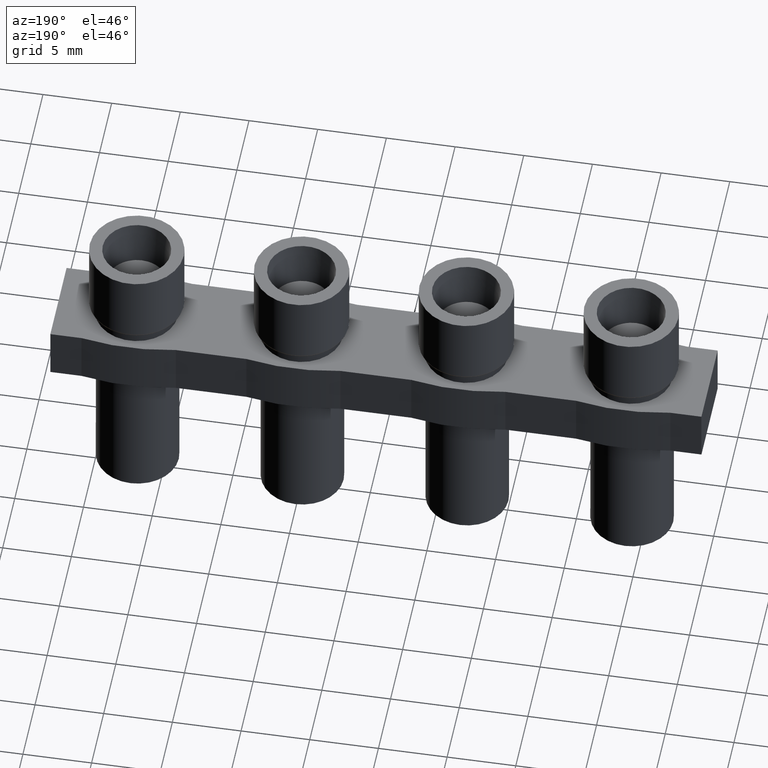
[diagram: clean part render]
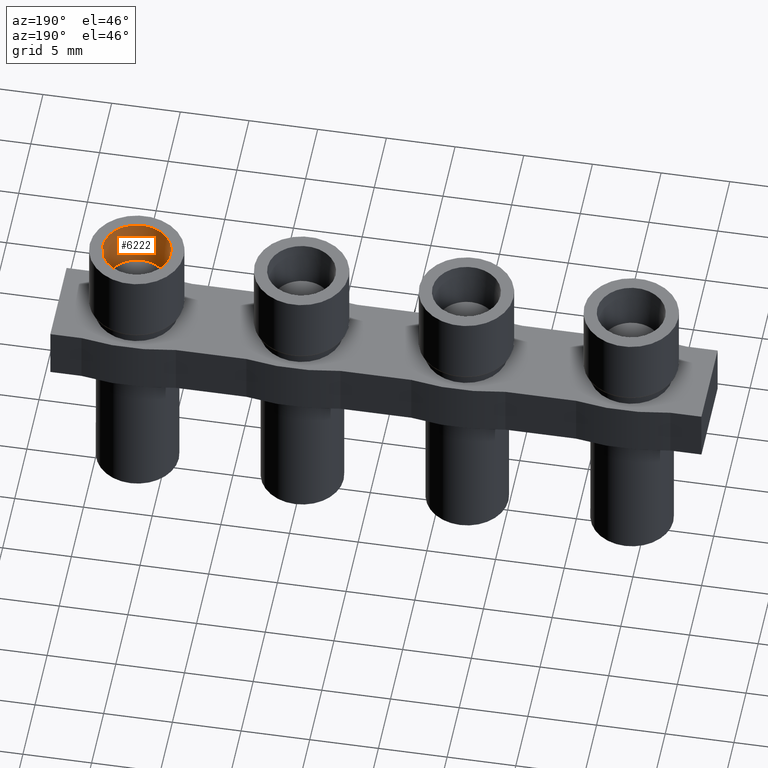
[diagram: same view with one face highlighted and labeled with its STEP entity id]
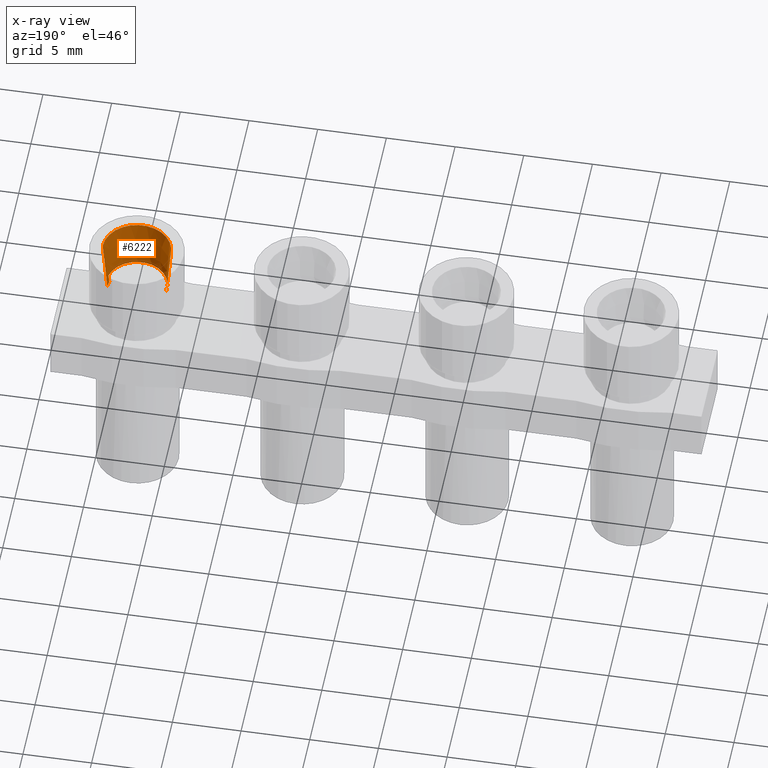
[diagram: x-ray of the same camera — body ghosted, the highlighted face saturated]
A machine part, auxiliary view. The second image highlights one B-rep face of the part: STEP entity #6222.
The next image is the same camera in x-ray: the body ghosted, the highlighted face saturated — about 0% of this face is hidden behind the body in this view.
In plain terms, the highlighted conical surface has half-angle 4.5 deg.
Its self-contained STEP definition (entity closure, byte-faithful):
#334 = CONICAL_SURFACE ( 'NONE', #352, 2.474999999997350700, 0.07854180092782268900 ) ;
#352 = AXIS2_PLACEMENT_3D ( 'NONE', #5779, #5781, #5776 ) ;
#440 = B_SPLINE_CURVE_WITH_KNOTS ( 'NONE', 3,
 ( #2069, #2081, #2083, #2084 ),
 .UNSPECIFIED., .F., .F.,
 ( 4, 4 ),
 ( 1.227401140627563300E-016, 0.0006598044007085708700 ),
 .UNSPECIFIED. ) ;
#444 = B_SPLINE_CURVE_WITH_KNOTS ( 'NONE', 3,
 ( #1956, #1957, #2003, #2013 ),
 .UNSPECIFIED., .F., .F.,
 ( 4, 4 ),
 ( 2.135422756237446900E-015, 0.0006598044007074736600 ),
 .UNSPECIFIED. ) ;
#828 = EDGE_LOOP ( 'NONE', ( #2525, #2527, #2502, #2531, #2538, #2555, #2512, #2504 ) ) ;
#1084 = VERTEX_POINT ( 'NONE', #1265 ) ;
#1085 = VERTEX_POINT ( 'NONE', #1241 ) ;
#1095 = VERTEX_POINT ( 'NONE', #1262 ) ;
#1111 = VERTEX_POINT ( 'NONE', #1292 ) ;
#1120 = VERTEX_POINT ( 'NONE', #1324 ) ;
#1133 = VERTEX_POINT ( 'NONE', #1351 ) ;
#1135 = VERTEX_POINT ( 'NONE', #1345 ) ;
#1139 = VERTEX_POINT ( 'NONE', #1360 ) ;
#1241 = CARTESIAN_POINT ( 'NONE',  ( 14.47500000001077300, 1.465963500825148300E-015, 5.400000000008731100 ) ) ;
#1262 = CARTESIAN_POINT ( 'NONE',  ( 14.14567947987342900, 1.465963500825148300E-015, 1.215692214827868200 ) ) ;
#1265 = CARTESIAN_POINT ( 'NONE',  ( 9.854320520126572400, 1.748898517571449800E-015, 1.215692214827868200 ) ) ;
#1292 = CARTESIAN_POINT ( 'NONE',  ( 9.913390206495138900, -0.4999999999999987200, 1.215692214829353200 ) ) ;
#1324 = CARTESIAN_POINT ( 'NONE',  ( 14.13979916186109500, -0.4999999999999980600, 1.873349221397940100 ) ) ;
#1345 = CARTESIAN_POINT ( 'NONE',  ( 9.860200838141874900, -0.4999999999999983900, 1.873349221397928600 ) ) ;
#1351 = CARTESIAN_POINT ( 'NONE',  ( 14.08660979350481000, -0.4999999999999980600, 1.215692214828690600 ) ) ;
#1360 = CARTESIAN_POINT ( 'NONE',  ( 9.524999999989228500, 1.769063583615437400E-015, 5.400000000008731100 ) ) ;
#1818 = LINE ( 'NONE', #1854, #5102 ) ;
#1854 = CARTESIAN_POINT ( 'NONE',  ( 14.47499999999735100, 1.465963500825148300E-015, 5.399999999838200900 ) ) ;
#1866 = DIRECTION ( 'NONE',  ( 0.07846107419794555400, 0.0000000000000000000, 0.9969171780221787200 ) ) ;
#1896 = CARTESIAN_POINT ( 'NONE',  ( 12.00000000000000000, 1.465963500825148300E-015, 1.215692214827868200 ) ) ;
#1900 = DIRECTION ( 'NONE',  ( -0.0000000000000000000, -0.0000000000000000000, -1.000000000000000000 ) ) ;
#1916 = DIRECTION ( 'NONE',  ( 1.000000000000000000, 0.0000000000000000000, 0.0000000000000000000 ) ) ;
#1938 = DIRECTION ( 'NONE',  ( -0.0000000000000000000, -0.0000000000000000000, -1.000000000000000000 ) ) ;
#1956 = CARTESIAN_POINT ( 'NONE',  ( 14.08660979350481000, -0.4999999999999980600, 1.215692214828690600 ) ) ;
#1957 = CARTESIAN_POINT ( 'NONE',  ( 14.10435148672601500, -0.4999999999999980600, 1.434910253952564900 ) ) ;
#1967 = CARTESIAN_POINT ( 'NONE',  ( 12.00000000000000000, 1.465963500825148300E-015, 5.400000000008731100 ) ) ;
#2003 = CARTESIAN_POINT ( 'NONE',  ( 14.12208098043518100, -0.4999999999999980600, 1.654129280694979400 ) ) ;
#2004 = DIRECTION ( 'NONE',  ( 1.000000000000000000, 0.0000000000000000000, 0.0000000000000000000 ) ) ;
#2013 = CARTESIAN_POINT ( 'NONE',  ( 14.13979916186109500, -0.4999999999999980600, 1.873349221397940100 ) ) ;
#2059 = CARTESIAN_POINT ( 'NONE',  ( 12.00000000000000000, 1.465963500825148300E-015, 1.873349221398257200 ) ) ;
#2068 = DIRECTION ( 'NONE',  ( 0.0000000000000000000, 0.0000000000000000000, 1.000000000000000000 ) ) ;
#2069 = CARTESIAN_POINT ( 'NONE',  ( 9.860200838141874900, -0.4999999999999983900, 1.873349221397928600 ) ) ;
#2070 = DIRECTION ( 'NONE',  ( 1.000000000000000000, 0.0000000000000000000, 0.0000000000000000000 ) ) ;
#2076 = CARTESIAN_POINT ( 'NONE',  ( 9.525000000002648900, 1.769063583613793800E-015, 5.399999999838200900 ) ) ;
#2079 = DIRECTION ( 'NONE',  ( -0.07846107419794555400, 9.608710337417701700E-018, 0.9969171780221787200 ) ) ;
#2081 = CARTESIAN_POINT ( 'NONE',  ( 9.877919019564824800, -0.4999999999999987200, 1.654129280694916800 ) ) ;
#2083 = CARTESIAN_POINT ( 'NONE',  ( 9.895648513273988200, -0.4999999999999987200, 1.434910253952543100 ) ) ;
#2084 = CARTESIAN_POINT ( 'NONE',  ( 9.913390206495138900, -0.4999999999999987200, 1.215692214829353200 ) ) ;
#2098 = LINE ( 'NONE', #2076, #5138 ) ;
#2126 = DIRECTION ( 'NONE',  ( 1.000000000000000000, 0.0000000000000000000, 0.0000000000000000000 ) ) ;
#2135 = CARTESIAN_POINT ( 'NONE',  ( 12.00000000000000000, 1.465963500825148300E-015, 1.215692214827868200 ) ) ;
#2139 = DIRECTION ( 'NONE',  ( -0.0000000000000000000, -0.0000000000000000000, -1.000000000000000000 ) ) ;
#2502 = ORIENTED_EDGE ( 'NONE', *, *, #4513, .F. ) ;
#2504 = ORIENTED_EDGE ( 'NONE', *, *, #4553, .T. ) ;
#2512 = ORIENTED_EDGE ( 'NONE', *, *, #4550, .F. ) ;
#2525 = ORIENTED_EDGE ( 'NONE', *, *, #4496, .T. ) ;
#2527 = ORIENTED_EDGE ( 'NONE', *, *, #4552, .T. ) ;
#2531 = ORIENTED_EDGE ( 'NONE', *, *, #4478, .F. ) ;
#2538 = ORIENTED_EDGE ( 'NONE', *, *, #4556, .T. ) ;
#2555 = ORIENTED_EDGE ( 'NONE', *, *, #4514, .T. ) ;
#4478 = EDGE_CURVE ( 'NONE', #1095, #1085, #1818, .T. ) ;
#4496 = EDGE_CURVE ( 'NONE', #1111, #1084, #5108, .T. ) ;
#4513 = EDGE_CURVE ( 'NONE', #1085, #1139, #5057, .T. ) ;
#4514 = EDGE_CURVE ( 'NONE', #1133, #1120, #444, .T. ) ;
#4550 = EDGE_CURVE ( 'NONE', #1135, #1120, #5140, .T. ) ;
#4552 = EDGE_CURVE ( 'NONE', #1084, #1139, #2098, .T. ) ;
#4553 = EDGE_CURVE ( 'NONE', #1135, #1111, #440, .T. ) ;
#4556 = EDGE_CURVE ( 'NONE', #1095, #1133, #5169, .T. ) ;
#5057 = CIRCLE ( 'NONE', #5079, 2.475000000010772400 ) ;
#5072 = AXIS2_PLACEMENT_3D ( 'NONE', #1896, #1900, #1916 ) ;
#5079 = AXIS2_PLACEMENT_3D ( 'NONE', #1967, #1938, #2004 ) ;
#5102 = VECTOR ( 'NONE', #1866, 1000.000000000000200 ) ;
#5108 = CIRCLE ( 'NONE', #5072, 2.145679479873428400 ) ;
#5138 = VECTOR ( 'NONE', #2079, 1000.000000000000200 ) ;
#5140 = CIRCLE ( 'NONE', #5168, 2.197439522057208700 ) ;
#5145 = AXIS2_PLACEMENT_3D ( 'NONE', #2135, #2139, #2126 ) ;
#5168 = AXIS2_PLACEMENT_3D ( 'NONE', #2059, #2068, #2070 ) ;
#5169 = CIRCLE ( 'NONE', #5145, 2.145679479873428400 ) ;
#5756 = FACE_OUTER_BOUND ( 'NONE', #828, .T. ) ;
#5776 = DIRECTION ( 'NONE',  ( 1.000000000000000000, 0.0000000000000000000, 0.0000000000000000000 ) ) ;
#5779 = CARTESIAN_POINT ( 'NONE',  ( 12.00000000000000000, 1.465963500825148300E-015, 5.399999999838200900 ) ) ;
#5781 = DIRECTION ( 'NONE',  ( 0.0000000000000000000, 0.0000000000000000000, 1.000000000000000000 ) ) ;
#6222 = ADVANCED_FACE ( 'NONE', ( #5756 ), #334, .F. ) ;